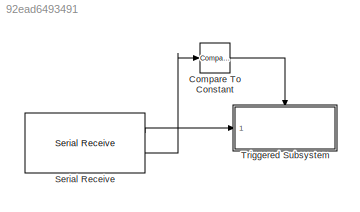
MODEL slx_92ead6493491
KIND model
BLOCK [Reference] Compare To Constant  REF=simulink/Logic and Bit
Operations/Compare
To Constant
  OutDataTypeStr = boolean
  Ports = [1, 1]
  SourceBlock = simulink/Logic and Bit\nOperations/Compare\nTo Constant
  SourceType = Compare To Constant
  ZeroCross = on
  const = 0
  relop = >
BLOCK [Reference] Serial Receive  REF=arduinolib/Serial Receive
  Ports = [0, 2]
  SourceBlock = arduinolib/Serial Receive
  SourceType = Arduino Serial Receive
  portNumber = 0
  sampleTime = 1e-3
  showOutStatus = on
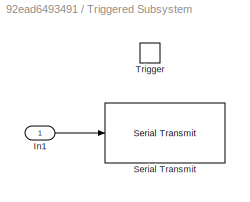
BLOCK [SubSystem] Triggered Subsystem
  Ports = [1, 0, 0, 1]
  RequestExecContextInheritance = off
  TreatAsAtomicUnit = on
BLOCK [Inport] Triggered Subsystem/In1
  IconDisplay = Port number
BLOCK [Reference] Triggered Subsystem/Serial Transmit  REF=arduinolib/Serial Transmit
  Ports = [1]
  SourceBlock = arduinolib/Serial Transmit
  SourceType = Arduino Serial Transmit
  portNumber = 0
BLOCK [TriggerPort] Triggered Subsystem/Trigger
  Ports = []
  StatesWhenEnabling = held
LINE Compare To Constant:1 -> Triggered Subsystem:trigger
LINE Serial Receive:1 -> Triggered Subsystem:1
LINE Serial Receive:2 -> Compare To Constant:1
LINE Triggered Subsystem/In1:1 -> Triggered Subsystem/Serial Transmit:1
